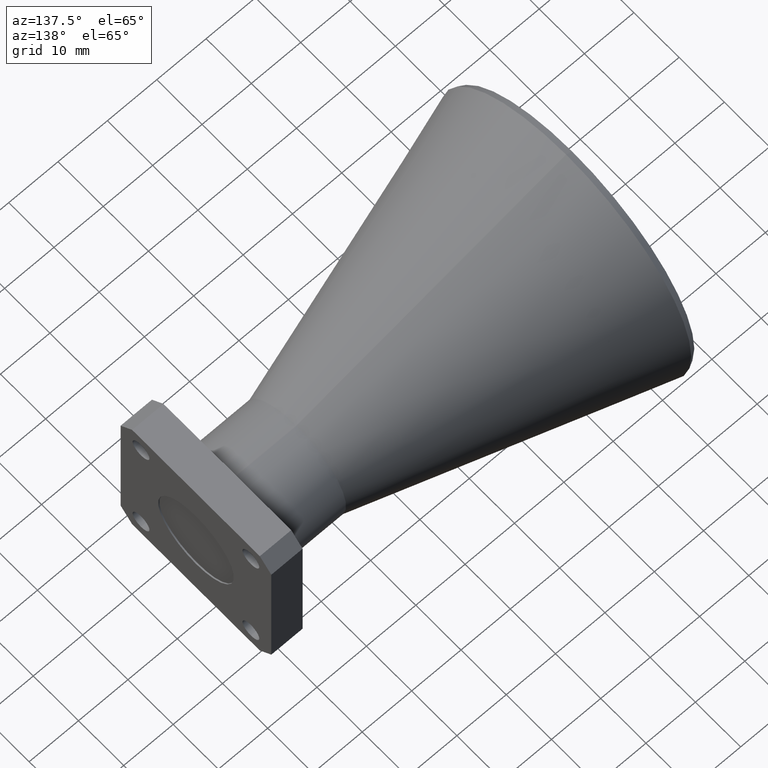
[diagram: clean part render]
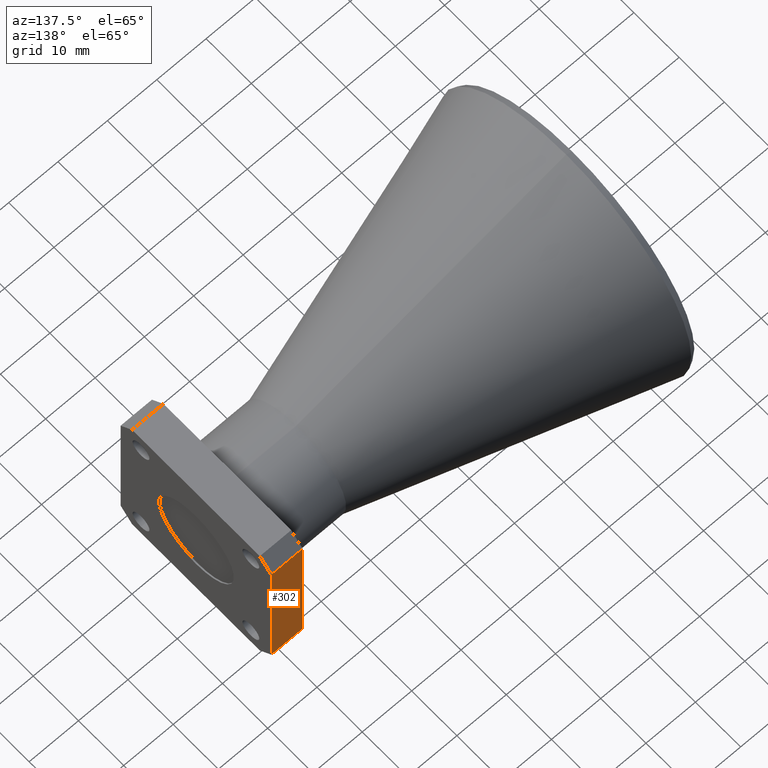
[diagram: same view with one face highlighted and labeled with its STEP entity id]
A machine part, auxiliary view. The second image highlights one B-rep face of the part: STEP entity #302.
In plain terms, the highlighted planar face has unit normal (0, -1, -0).
Its self-contained STEP definition (entity closure, byte-faithful):
#28 = DIRECTION ( 'NONE',  ( 0.0000000000000000000, 0.0000000000000000000, -1.000000000000000000 ) ) ;
#50 = EDGE_CURVE ( 'NONE', #822, #217, #213, .T. ) ;
#64 = CARTESIAN_POINT ( 'NONE',  ( 3.000000000000000400, 0.6560000000000000300, 0.5559999999999994900 ) ) ;
#66 = VERTEX_POINT ( 'NONE', #891 ) ;
#106 = ORIENTED_EDGE ( 'NONE', *, *, #50, .T. ) ;
#113 = CARTESIAN_POINT ( 'NONE',  ( 2.750000000000000400, 0.6560000000000000300, 0.0000000000000000000 ) ) ;
#126 = DIRECTION ( 'NONE',  ( 1.000000000000000000, 0.0000000000000000000, 0.0000000000000000000 ) ) ;
#167 = ORIENTED_EDGE ( 'NONE', *, *, #921, .T. ) ;
#180 = VECTOR ( 'NONE', #618, 39.37007874015748100 ) ;
#187 = LINE ( 'NONE', #483, #917 ) ;
#191 = VECTOR ( 'NONE', #28, 39.37007874015748100 ) ;
#192 = EDGE_CURVE ( 'NONE', #217, #305, #187, .T. ) ;
#213 = LINE ( 'NONE', #113, #370 ) ;
#217 = VERTEX_POINT ( 'NONE', #342 ) ;
#273 = DIRECTION ( 'NONE',  ( 0.0000000000000000000, -1.000000000000000000, -0.0000000000000000000 ) ) ;
#302 = ADVANCED_FACE ( 'NONE', ( #530 ), #714, .F. ) ;
#305 = VERTEX_POINT ( 'NONE', #64 ) ;
#318 = LINE ( 'NONE', #697, #180 ) ;
#342 = CARTESIAN_POINT ( 'NONE',  ( 2.750000000000000400, 0.6560000000000000300, 0.5559999999999994900 ) ) ;
#370 = VECTOR ( 'NONE', #544, 39.37007874015748100 ) ;
#410 = EDGE_LOOP ( 'NONE', ( #167, #419, #106, #526 ) ) ;
#419 = ORIENTED_EDGE ( 'NONE', *, *, #614, .T. ) ;
#483 = CARTESIAN_POINT ( 'NONE',  ( 3.000000000000000400, 0.6560000000000000300, 0.5559999999999994900 ) ) ;
#518 = LINE ( 'NONE', #811, #191 ) ;
#520 = CARTESIAN_POINT ( 'NONE',  ( 2.750000000000000400, 0.6560000000000000300, -0.5559999999999993800 ) ) ;
#526 = ORIENTED_EDGE ( 'NONE', *, *, #192, .T. ) ;
#530 = FACE_OUTER_BOUND ( 'NONE', #410, .T. ) ;
#544 = DIRECTION ( 'NONE',  ( 0.0000000000000000000, 0.0000000000000000000, 1.000000000000000000 ) ) ;
#614 = EDGE_CURVE ( 'NONE', #66, #822, #318, .T. ) ;
#618 = DIRECTION ( 'NONE',  ( -1.000000000000000000, 0.0000000000000000000, 0.0000000000000000000 ) ) ;
#697 = CARTESIAN_POINT ( 'NONE',  ( -3.937007874019685500E-005, 0.6560000000000000300, -0.5559999999999993800 ) ) ;
#714 = PLANE ( 'NONE',  #876 ) ;
#771 = DIRECTION ( 'NONE',  ( 0.0000000000000000000, 0.0000000000000000000, -1.000000000000000000 ) ) ;
#811 = CARTESIAN_POINT ( 'NONE',  ( 3.000000000000000400, 0.6560000000000000300, 0.0000000000000000000 ) ) ;
#822 = VERTEX_POINT ( 'NONE', #520 ) ;
#843 = CARTESIAN_POINT ( 'NONE',  ( -3.937007874019685500E-005, 0.6560000000000000300, 0.0000000000000000000 ) ) ;
#876 = AXIS2_PLACEMENT_3D ( 'NONE', #843, #273, #771 ) ;
#891 = CARTESIAN_POINT ( 'NONE',  ( 3.000000000000000400, 0.6560000000000000300, -0.5559999999999993800 ) ) ;
#917 = VECTOR ( 'NONE', #126, 39.37007874015748100 ) ;
#921 = EDGE_CURVE ( 'NONE', #305, #66, #518, .T. ) ;